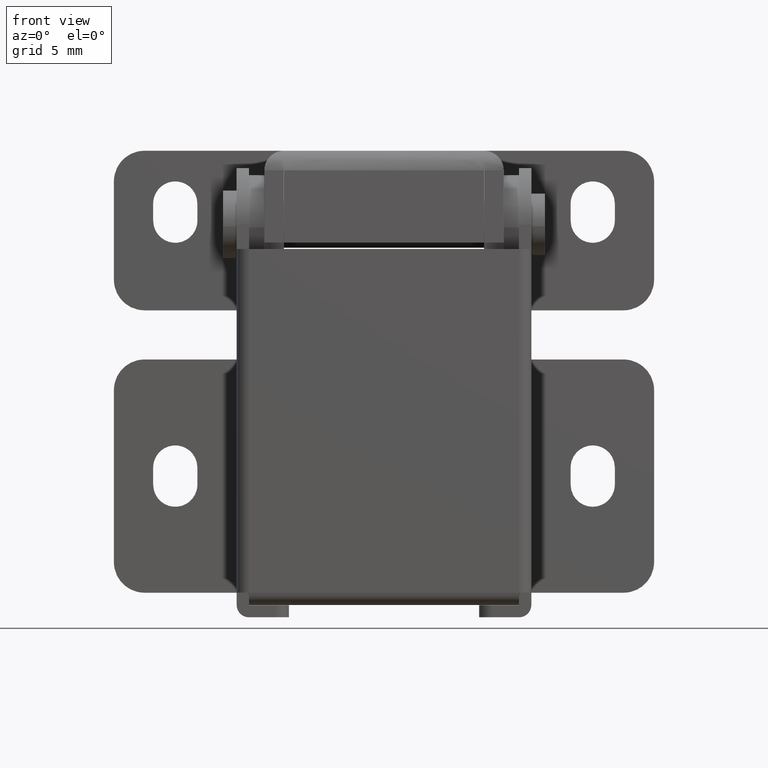
[diagram: clean part render]
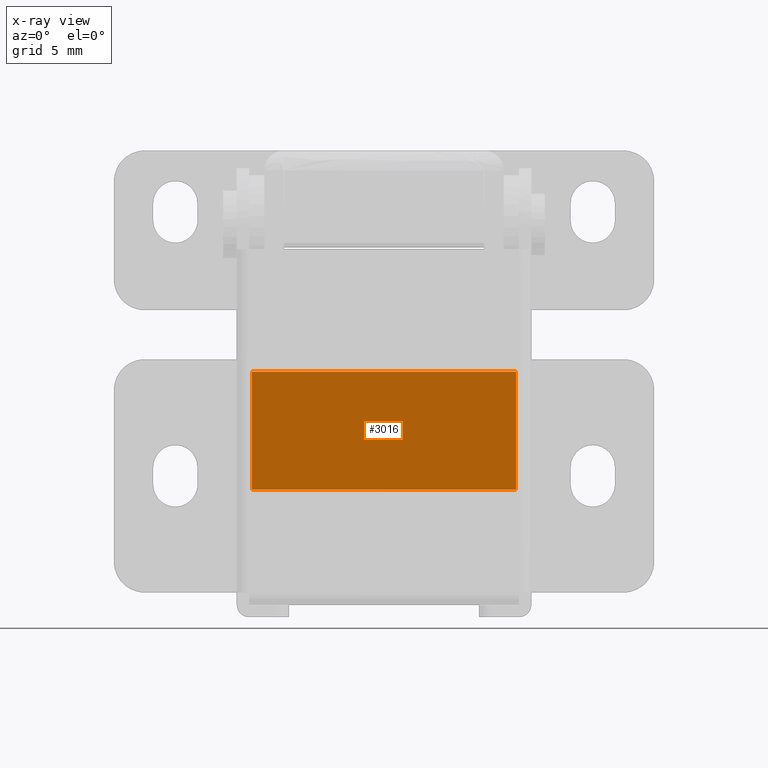
[diagram: x-ray — body ghosted, one internal face saturated and labeled with its STEP entity id]
A machine part, front view, then the same camera in x-ray: the body is ghosted and one INTERNAL B-rep face — a face not visible from any outside direction — is saturated and labeled: STEP entity #3016.
In plain terms, the highlighted face is a freeform B-spline surface patch.
Its self-contained STEP definition (entity closure, byte-faithful):
#2874=CARTESIAN_POINT('',(-10.750000000000259,-4.250000000000000,-21.600006000000000));
#2875=VERTEX_POINT('',#2874);
#2876=CARTESIAN_POINT('',(-10.750000000000259,-4.250000000000000,-12.0));
#2877=VERTEX_POINT('',#2876);
#2878=CARTESIAN_POINT('',(-10.750000000000259,-4.250000000000000,-21.600006000000000));
#2879=CARTESIAN_POINT('',(-10.750000000000259,-4.250000000000000,-12.0));
#2880=QUASI_UNIFORM_CURVE('',1,(#2878,#2879),.UNSPECIFIED.,.F.,.U.);
#2881=EDGE_CURVE('',#2875,#2877,#2880,.T.);
#2910=CARTESIAN_POINT('',(10.750000000000000,-4.250000000000000,-21.600006000000000));
#2911=VERTEX_POINT('',#2910);
#2912=CARTESIAN_POINT('',(10.750000000000000,-4.250000000000000,-12.0));
#2913=VERTEX_POINT('',#2912);
#2914=CARTESIAN_POINT('',(10.750000000000000,-4.250000000000000,-21.600006000000000));
#2915=CARTESIAN_POINT('',(10.750000000000000,-4.250000000000000,-12.0));
#2916=QUASI_UNIFORM_CURVE('',1,(#2914,#2915),.UNSPECIFIED.,.F.,.U.);
#2917=EDGE_CURVE('',#2911,#2913,#2916,.T.);
#2953=CARTESIAN_POINT('',(10.750000000000000,-4.250000000000000,-21.600006000000000));
#2954=CARTESIAN_POINT('',(-10.750000000000259,-4.250000000000000,-21.600006000000000));
#2955=QUASI_UNIFORM_CURVE('',1,(#2953,#2954),.UNSPECIFIED.,.F.,.U.);
#2956=EDGE_CURVE('',#2911,#2875,#2955,.T.);
#2995=CARTESIAN_POINT('',(10.750000000000000,-4.250000000000000,-12.0));
#2996=CARTESIAN_POINT('',(-10.750000000000259,-4.250000000000000,-12.0));
#2997=QUASI_UNIFORM_CURVE('',1,(#2995,#2996),.UNSPECIFIED.,.F.,.U.);
#2998=EDGE_CURVE('',#2913,#2877,#2997,.T.);
#3005=CARTESIAN_POINT('',(-11.823924958329100,-4.250000000000000,-11.520479718906669));
#3006=CARTESIAN_POINT('',(-11.823924958329100,-4.250000000000000,-22.079526538585551));
#3007=CARTESIAN_POINT('',(11.823925535003781,-4.250000000000000,-11.520479718906669));
#3008=CARTESIAN_POINT('',(11.823925535003781,-4.250000000000000,-22.079526538585551));
#3009=B_SPLINE_SURFACE_WITH_KNOTS('',1,1,((#3005,#3007),(#3006,#3008)),.UNSPECIFIED.,.F.,.F.,.U.,(2,2),(2,2),(0.0,10.559046819678880),(0.0,23.647850493332879),.UNSPECIFIED.);
#3010=ORIENTED_EDGE('',*,*,#2881,.F.);
#3011=ORIENTED_EDGE('',*,*,#2956,.F.);
#3012=ORIENTED_EDGE('',*,*,#2917,.T.);
#3013=ORIENTED_EDGE('',*,*,#2998,.T.);
#3014=EDGE_LOOP('',(#3010,#3011,#3012,#3013));
#3015=FACE_OUTER_BOUND('',#3014,.T.);
#3016=ADVANCED_FACE('',(#3015),#3009,.T.);